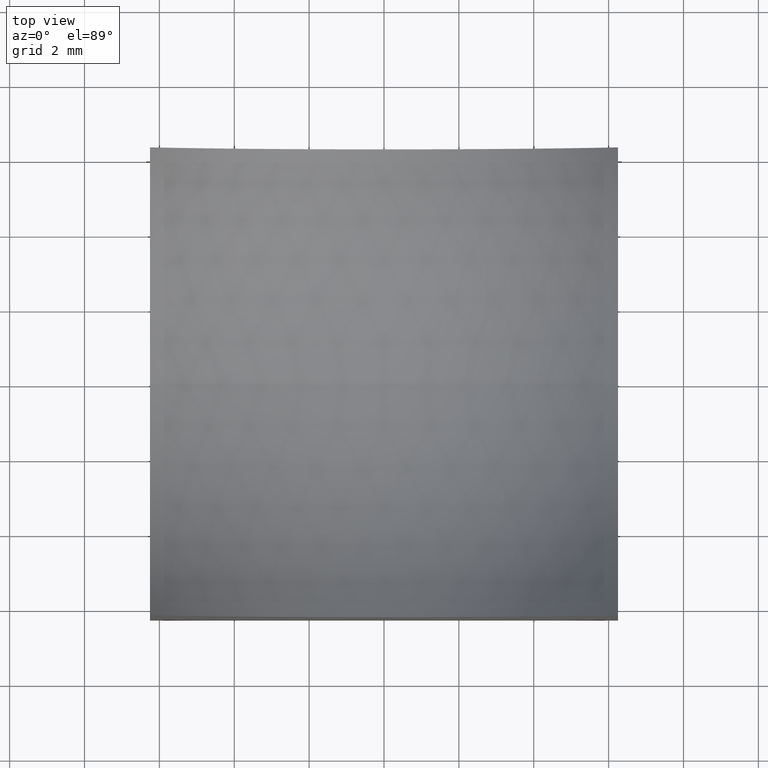
[diagram: clean part render]
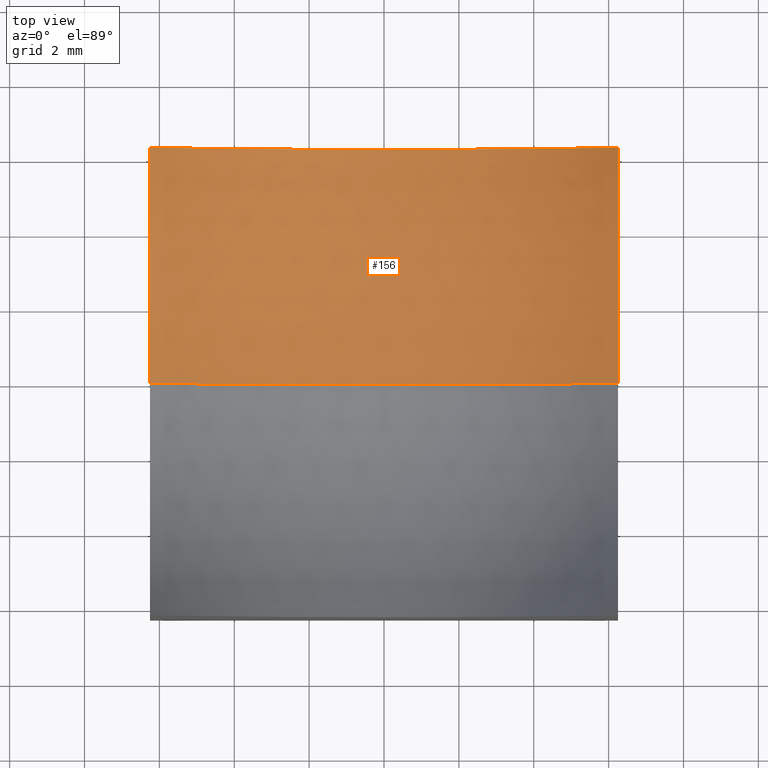
[diagram: same view with one face highlighted and labeled with its STEP entity id]
A machine part, top view. The second image highlights one B-rep face of the part: STEP entity #156.
In plain terms, the highlighted spherical surface has radius 10 mm.
Its self-contained STEP definition (entity closure, byte-faithful):
#2 = ORIENTED_EDGE ( 'NONE', *, *, #134, .T. ) ;
#3 = CIRCLE ( 'NONE', #105, 7.806247497997999218 ) ;
#10 = CARTESIAN_POINT ( 'NONE',  ( 1.734723475976807094E-15, 0.0000000000000000000, 13.00000000000000178 ) ) ;
#35 = CARTESIAN_POINT ( 'NONE',  ( -6.250000000000000000, 6.250000000000000888, 8.322928266532574781 ) ) ;
#36 = VERTEX_POINT ( 'NONE', #233 ) ;
#37 = CARTESIAN_POINT ( 'NONE',  ( 6.250000000000000000, 0.0000000000000000000, 5.193752502001999893 ) ) ;
#49 = VERTEX_POINT ( 'NONE', #210 ) ;
#51 = ORIENTED_EDGE ( 'NONE', *, *, #68, .T. ) ;
#52 = DIRECTION ( 'NONE',  ( -0.0000000000000000000, 1.000000000000000000, 0.0000000000000000000 ) ) ;
#54 = EDGE_LOOP ( 'NONE', ( #113, #2, #51, #72, #123 ) ) ;
#61 = DIRECTION ( 'NONE',  ( 1.000000000000000000, 0.0000000000000000000, -0.0000000000000000000 ) ) ;
#66 = CIRCLE ( 'NONE', #147, 7.806247497997999218 ) ;
#68 = EDGE_CURVE ( 'NONE', #204, #36, #81, .T. ) ;
#70 = CARTESIAN_POINT ( 'NONE',  ( 1.734723475976807094E-15, 6.250000000000000888, 13.00000000000000178 ) ) ;
#72 = ORIENTED_EDGE ( 'NONE', *, *, #196, .T. ) ;
#81 = CIRCLE ( 'NONE', #188, 7.806247497998001883 ) ;
#84 = CARTESIAN_POINT ( 'NONE',  ( 1.734723475976807094E-15, 0.0000000000000000000, 13.00000000000000178 ) ) ;
#85 = DIRECTION ( 'NONE',  ( 0.0000000000000000000, 0.0000000000000000000, -1.000000000000000000 ) ) ;
#98 = CARTESIAN_POINT ( 'NONE',  ( -6.250000000000000000, 0.0000000000000000000, 13.00000000000000178 ) ) ;
#102 = EDGE_CURVE ( 'NONE', #207, #198, #3, .T. ) ;
#104 = EDGE_CURVE ( 'NONE', #49, #207, #131, .T. ) ;
#105 = AXIS2_PLACEMENT_3D ( 'NONE', #98, #119, #195 ) ;
#113 = ORIENTED_EDGE ( 'NONE', *, *, #104, .F. ) ;
#119 = DIRECTION ( 'NONE',  ( 1.000000000000000000, 0.0000000000000000000, -0.0000000000000000000 ) ) ;
#123 = ORIENTED_EDGE ( 'NONE', *, *, #102, .F. ) ;
#127 = DIRECTION ( 'NONE',  ( 0.0000000000000000000, -1.000000000000000000, 0.0000000000000000000 ) ) ;
#130 = DIRECTION ( 'NONE',  ( 1.000000000000000000, 0.0000000000000000000, 0.0000000000000000000 ) ) ;
#131 = CIRCLE ( 'NONE', #139, 10.00000000000000178 ) ;
#134 = EDGE_CURVE ( 'NONE', #49, #204, #170, .T. ) ;
#136 = DIRECTION ( 'NONE',  ( 1.224646799147353207E-16, 1.000000000000000000, 9.649496739354411937E-33 ) ) ;
#139 = AXIS2_PLACEMENT_3D ( 'NONE', #154, #136, #236 ) ;
#145 = FACE_OUTER_BOUND ( 'NONE', #54, .T. ) ;
#147 = AXIS2_PLACEMENT_3D ( 'NONE', #70, #168, #205 ) ;
#154 = CARTESIAN_POINT ( 'NONE',  ( 1.734723475976807094E-15, 0.0000000000000000000, 13.00000000000000178 ) ) ;
#156 = ADVANCED_FACE ( 'NONE', ( #145 ), #245, .F. ) ;
#159 = AXIS2_PLACEMENT_3D ( 'NONE', #84, #52, #130 ) ;
#168 = DIRECTION ( 'NONE',  ( 0.0000000000000000000, 1.000000000000000000, 0.0000000000000000000 ) ) ;
#170 = CIRCLE ( 'NONE', #176, 10.00000000000000178 ) ;
#176 = AXIS2_PLACEMENT_3D ( 'NONE', #10, #127, #85 ) ;
#188 = AXIS2_PLACEMENT_3D ( 'NONE', #235, #61, #214 ) ;
#195 = DIRECTION ( 'NONE',  ( 0.0000000000000000000, 0.0000000000000000000, -1.000000000000000000 ) ) ;
#196 = EDGE_CURVE ( 'NONE', #36, #198, #66, .T. ) ;
#198 = VERTEX_POINT ( 'NONE', #35 ) ;
#204 = VERTEX_POINT ( 'NONE', #37 ) ;
#205 = DIRECTION ( 'NONE',  ( 0.0000000000000000000, 0.0000000000000000000, 1.000000000000000000 ) ) ;
#207 = VERTEX_POINT ( 'NONE', #247 ) ;
#210 = CARTESIAN_POINT ( 'NONE',  ( 3.134988079991859781E-15, 0.0000000000000000000, 2.999999999999999112 ) ) ;
#214 = DIRECTION ( 'NONE',  ( 0.0000000000000000000, 0.0000000000000000000, -1.000000000000000000 ) ) ;
#233 = CARTESIAN_POINT ( 'NONE',  ( 6.250000000000000000, 6.250000000000000888, 8.322928266532569452 ) ) ;
#235 = CARTESIAN_POINT ( 'NONE',  ( 6.250000000000000000, 0.0000000000000000000, 13.00000000000000178 ) ) ;
#236 = DIRECTION ( 'NONE',  ( -1.000000000000000000, 1.224646799147353207E-16, 0.0000000000000000000 ) ) ;
#245 = SPHERICAL_SURFACE ( 'NONE', #159, 10.00000000000000178 ) ;
#247 = CARTESIAN_POINT ( 'NONE',  ( -6.250000000000000000, 7.654042494670960565E-16, 5.193752502002001670 ) ) ;